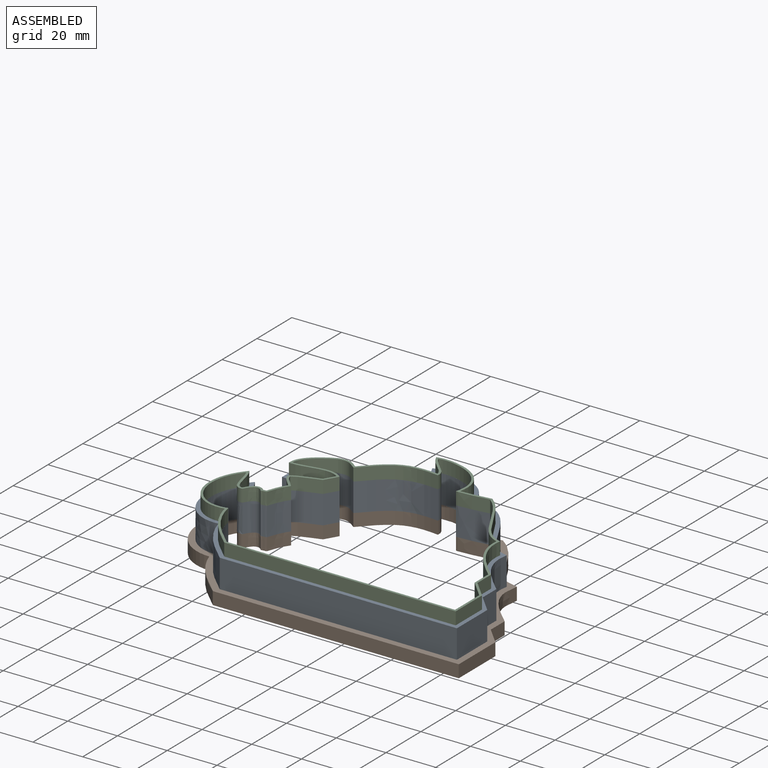
[diagram: assembled view]
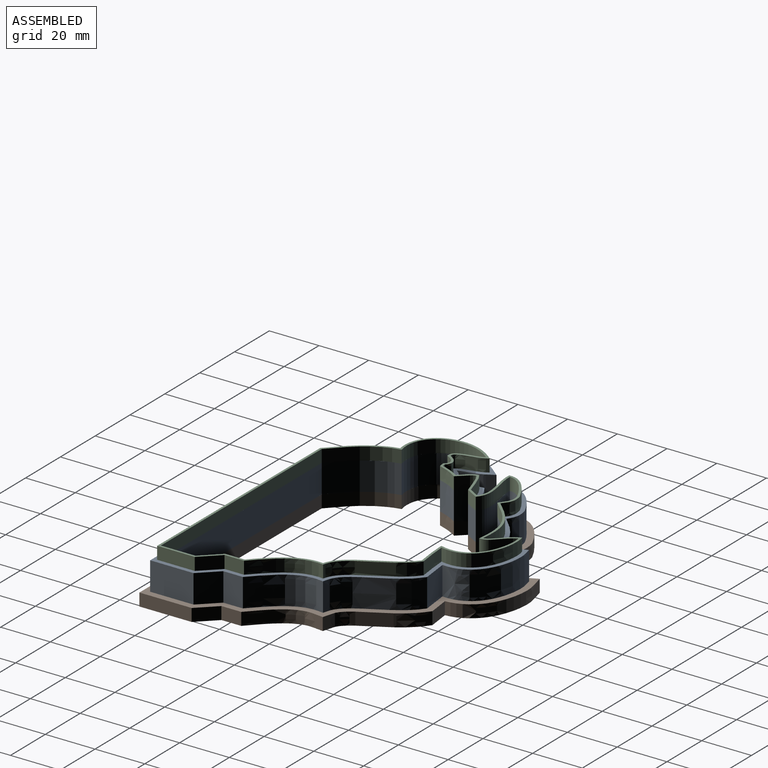
[diagram: assembled view, second angle]
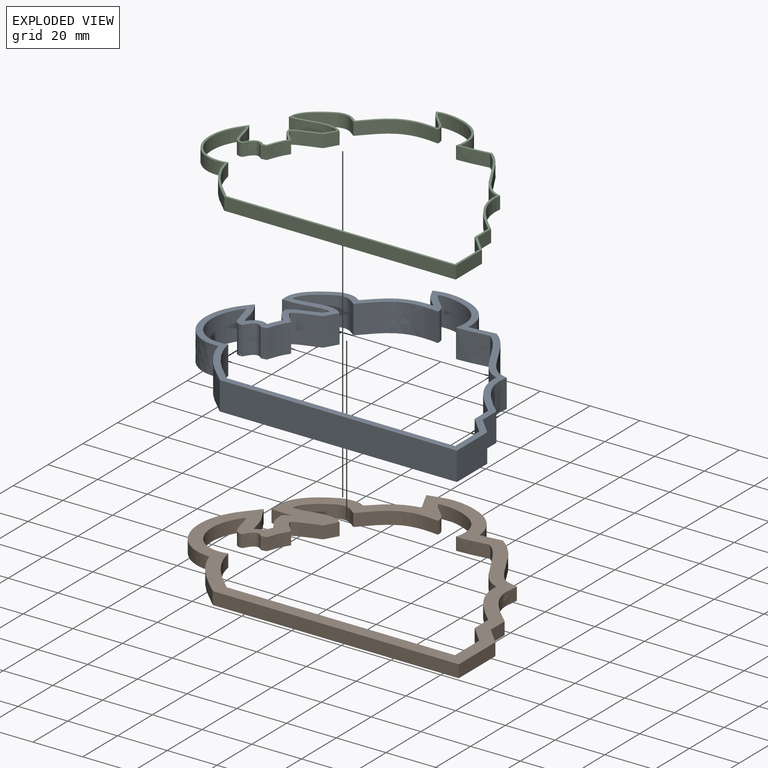
[diagram: exploded view]
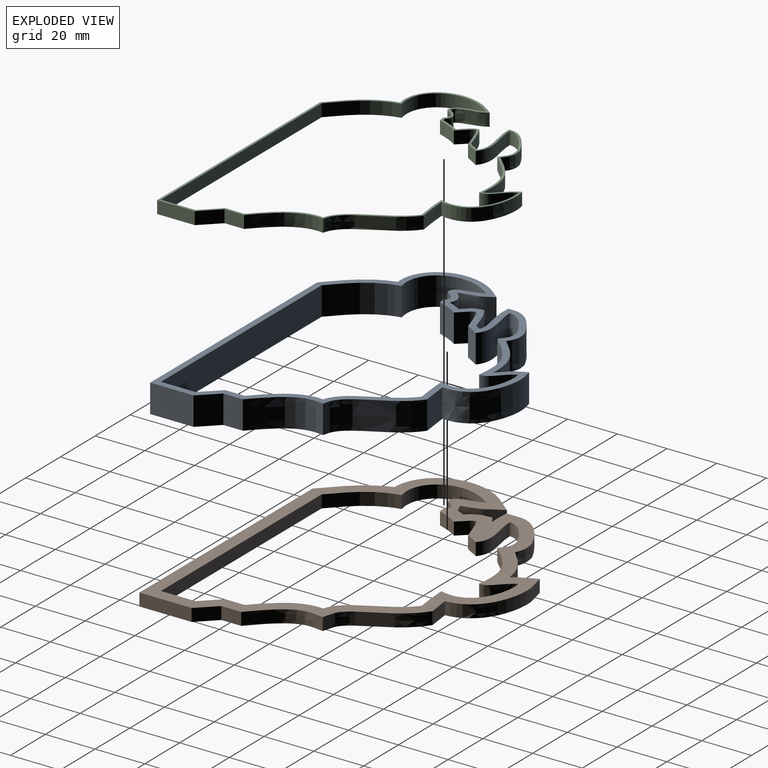
[diagram: exploded view, second angle]
ASSEMBLY  parts=3 mates=2
PART A: 45 faces, bbox 135.7x106.6x19.4 mm
  f0: plane 135.71x106.62mm, normal (0,0,1), area 1136.3mm2, adj f2,f3,f4,f5,f6,f7,f8,f9
  f1: plane 135.71x106.62mm, normal (0,0,-1), area 1136.3mm2, adj f2,f3,f4,f5,f6,f7,f8,f9
  f2: extruded ~33.63x16.59mm, area 523.3mm2, adj f0,f1,f3,f22
  f3: extruded ~21.5x15.59mm, area 308mm2, adj f0,f1,f2,f4
  f4: plane 95.58x11.43mm, normal (0,-1,0), area 1092.5mm2, adj f0,f1,f3,f5
  f5: plane 17.45x11.43mm, normal (1,0,0), area 199.4mm2, adj f0,f1,f4,f6
  f6: plane 11.43x7.17mm, normal (0.72,0.69,0), area 113.5mm2, adj f0,f1,f5,f7
  f7: plane 11.43x7.87mm, normal (1,0,0), area 90mm2, adj f0,f1,f6,f8
  f8: extruded ~23.56x12.69mm, area 320.2mm2, adj f0,f1,f7,f9
  f9: extruded ~26.17x22.44mm, area 405.7mm2, adj f0,f1,f8,f10
  f10: extruded ~11.43x10.6mm, area 121.9mm2, adj f0,f1,f9,f11
  f11: extruded ~26.08x17.7mm, area 414mm2, adj f0,f1,f10,f12
  f12: extruded ~11.43x9.52mm, area 137.7mm2, adj f0,f1,f11,f13
  f13: extruded ~22.65x11.43mm, area 298.4mm2, adj f0,f1,f12,f14
  f14: extruded ~11.43x8.44mm, area 102.6mm2, adj f0,f1,f13,f15
  f15: extruded ~15.45x12.59mm, area 247.9mm2, adj f0,f1,f14,f16
  f16: extruded ~18.25x11.43mm, area 211.2mm2, adj f0,f1,f15,f17
  f17: plane 11.43x2.3mm, normal (-0.86,0.5,0), area 30.5mm2, adj f0,f1,f16,f18
  f18: extruded ~11.45x11.43mm, area 142.3mm2, adj f0,f1,f17,f19
  f19: extruded ~11.43x7.5mm, area 101.4mm2, adj f0,f1,f18,f20
  f20: extruded ~11.43x5.42mm, area 68.4mm2, adj f0,f1,f19,f21
  f21: extruded ~11.43x7.39mm, area 99.5mm2, adj f0,f1,f20,f22
  f22: extruded ~12.59x11.43mm, area 153.4mm2, adj f0,f1,f2,f21
  f23: extruded ~26.63x16mm, area 438.2mm2, adj f0,f1,f24,f44
  f24: extruded ~21.89x14.65mm, area 307.1mm2, adj f0,f1,f23,f25
  f25: plane 92.03x11.43mm, normal (0,1,0), area 1051.9mm2, adj f0,f1,f24,f26
  f26: plane 13.88x11.43mm, normal (-1,0,0), area 158.7mm2, adj f0,f1,f25,f27
  f27: plane 11.43x7.17mm, normal (-0.72,-0.69,0), area 113.5mm2, adj f0,f1,f26,f28
  f28: plane 11.43x7.8mm, normal (-1,0,0), area 89.1mm2, adj f0,f1,f27,f29
  f29: extruded ~22.78x12.69mm, area 309.3mm2, adj f0,f1,f28,f30
  f30: extruded ~25.4x20.39mm, area 380mm2, adj f0,f1,f29,f31
  f31: extruded ~12.94x11.43mm, area 148.8mm2, adj f0,f1,f30,f32
  f32: extruded ~19.9x17.69mm, area 357.3mm2, adj f0,f1,f31,f33
  f33: extruded ~11.43x10.73mm, area 152.8mm2, adj f0,f1,f32,f34
  f34: extruded ~26.19x11.52mm, area 344.9mm2, adj f0,f1,f33,f35
  f35: extruded ~11.43x7.88mm, area 99.8mm2, adj f0,f1,f34,f36
  f36: extruded ~11.43x10.91mm, area 181.6mm2, adj f0,f1,f35,f37
  f37: extruded ~19.15x11.43mm, area 226.6mm2, adj f0,f1,f36,f38
  f38: plane 11.43x5.2mm, normal (0.86,-0.5,0), area 68.8mm2, adj f0,f1,f37,f39
  f39: extruded ~11.43x10.48mm, area 128.1mm2, adj f0,f1,f38,f40
  f40: extruded ~11.43x5.94mm, area 86.5mm2, adj f0,f1,f39,f41
  f41: extruded ~11.43x8.33mm, area 105.6mm2, adj f0,f1,f40,f42
  f42: extruded ~11.43x2.22mm, area 25.9mm2, adj f0,f1,f41,f43
  f43: extruded ~11.43x5.75mm, area 90.4mm2, adj f0,f1,f42,f44
  f44: extruded ~11.43x11.23mm, area 160.5mm2, adj f0,f1,f23,f43
PART B: 44 faces, bbox 136.7x107.6x9 mm
  f0: plane 136.72x107.64mm, normal (0,0,1), area 2277.5mm2, adj f2,f3,f4,f5,f6,f7,f8,f9
  f1: plane 136.72x107.64mm, normal (0,0,-1), area 2277.5mm2, adj f2,f3,f4,f5,f6,f7,f8,f9
  f2: extruded ~40.63x17.28mm, area 272mm2, adj f0,f1,f3,f21
  f3: extruded ~21.41x16.43mm, area 138.7mm2, adj f0,f1,f2,f4
  f4: plane 99.13x5.08mm, normal (0,-1,0), area 503.6mm2, adj f0,f1,f3,f5
  f5: plane 21.01x5.08mm, normal (1,0,0), area 106.7mm2, adj f0,f1,f4,f6
  f6: plane 7.17x6.86mm, normal (0.72,0.69,0), area 50.4mm2, adj f0,f1,f5,f7
  f7: plane 7.95x5.08mm, normal (1,0,0), area 40.4mm2, adj f0,f1,f6,f8
  f8: extruded ~24.34x12.69mm, area 147.1mm2, adj f0,f1,f7,f9
  f9: extruded ~26.95x24.49mm, area 192.9mm2, adj f0,f1,f8,f10
  f10: extruded ~8.71x5.08mm, area 44.6mm2, adj f0,f1,f9,f11
  f11: extruded ~32.22x17.42mm, area 206.5mm2, adj f0,f1,f10,f12
  f12: extruded ~8.86x5.08mm, area 50.2mm2, adj f0,f1,f11,f13
  f13: extruded ~17.08x9.71mm, area 102.1mm2, adj f0,f1,f12,f14
  f14: extruded ~8.92x5.08mm, area 46.4mm2, adj f0,f1,f13,f15
  f15: extruded ~20.3x14.27mm, area 136.9mm2, adj f0,f1,f14,f16
  f16: extruded ~8.4x5.08mm, area 42.4mm2, adj f0,f1,f15,f17
  f17: extruded ~5.08x3.12mm, area 18.5mm2, adj f0,f1,f16,f18
  f18: extruded ~9.24x5.08mm, area 52.3mm2, adj f0,f1,f17,f19
  f19: extruded ~5.08x3.22mm, area 17.9mm2, adj f0,f1,f18,f20
  f20: extruded ~5.08x3.54mm, area 19.8mm2, adj f0,f1,f19,f21
  f21: extruded ~14.51x6.13mm, area 78.8mm2, adj f0,f1,f2,f20
  f22: extruded ~26.63x16mm, area 194.8mm2, adj f0,f1,f23,f43
  f23: extruded ~21.89x14.65mm, area 136.5mm2, adj f0,f1,f22,f24
  f24: plane 92.03x5.08mm, normal (0,1,0), area 467.5mm2, adj f0,f1,f23,f25
  f25: plane 13.88x5.08mm, normal (-1,0,0), area 70.5mm2, adj f0,f1,f24,f26
  f26: plane 7.17x6.86mm, normal (-0.72,-0.69,0), area 50.4mm2, adj f0,f1,f25,f27
  f27: plane 7.8x5.08mm, normal (-1,0,0), area 39.6mm2, adj f0,f1,f26,f28
  f28: extruded ~22.78x12.69mm, area 137.5mm2, adj f0,f1,f27,f29
  f29: extruded ~25.4x20.39mm, area 168.9mm2, adj f0,f1,f28,f30
  f30: extruded ~12.94x5.08mm, area 66.1mm2, adj f0,f1,f29,f31
  f31: extruded ~19.9x17.69mm, area 158.8mm2, adj f0,f1,f30,f32
  f32: extruded ~10.73x7.32mm, area 67.9mm2, adj f0,f1,f31,f33
  f33: extruded ~26.19x11.52mm, area 153.3mm2, adj f0,f1,f32,f34
  f34: extruded ~7.88x5.08mm, area 44.4mm2, adj f0,f1,f33,f35
  f35: extruded ~10.91x10.61mm, area 80.7mm2, adj f0,f1,f34,f36
  f36: extruded ~19.15x5.08mm, area 100.7mm2, adj f0,f1,f35,f37
  f37: plane 5.2x5.08mm, normal (0.86,-0.5,0), area 30.6mm2, adj f0,f1,f36,f38
  f38: extruded ~10.48x5.08mm, area 57mm2, adj f0,f1,f37,f39
  f39: extruded ~5.94x5.08mm, area 38.4mm2, adj f0,f1,f38,f40
  f40: extruded ~8.33x5.08mm, area 46.9mm2, adj f0,f1,f39,f41
  f41: extruded ~5.08x2.22mm, area 11.5mm2, adj f0,f1,f40,f42
  f42: extruded ~5.75x5.08mm, area 40.2mm2, adj f0,f1,f41,f43
  f43: extruded ~11.23x6.31mm, area 71.3mm2, adj f0,f1,f22,f42
PART C: 46 faces, bbox 129.3x99x8.5 mm
  f0: plane 129.29x99.01mm, normal (0,0,1), area 393.6mm2, adj f2,f3,f4,f5,f6,f7,f8,f9
  f1: plane 129.29x99.01mm, normal (0,0,-1), area 393.6mm2, adj f2,f3,f4,f5,f6,f7,f8,f9
  f2: extruded ~29.07x16.19mm, area 207.8mm2, adj f0,f1,f3,f23
  f3: extruded ~21.71x14.99mm, area 136.4mm2, adj f0,f1,f2,f4
  f4: plane 93.27x5.08mm, normal (0,-1,0), area 473.8mm2, adj f0,f1,f3,f5
  f5: plane 15.13x5.08mm, normal (1,0,0), area 76.9mm2, adj f0,f1,f4,f6
  f6: plane 7.17x6.86mm, normal (0.72,0.69,0), area 50.4mm2, adj f0,f1,f5,f7
  f7: plane 7.82x5.08mm, normal (1,0,0), area 39.7mm2, adj f0,f1,f6,f8
  f8: extruded ~23.05x12.69mm, area 139.2mm2, adj f0,f1,f7,f9
  f9: extruded ~25.67x21.11mm, area 173mm2, adj f0,f1,f8,f10
  f10: extruded ~12.08x5.08mm, area 61.7mm2, adj f0,f1,f9,f11
  f11: extruded ~22.05x17.78mm, area 168.2mm2, adj f0,f1,f10,f12
  f12: extruded ~10.34x7.68mm, area 66.4mm2, adj f0,f1,f11,f13
  f13: extruded ~25.48x11.25mm, area 148.8mm2, adj f0,f1,f12,f14
  f14: extruded ~8.05x5.08mm, area 44.7mm2, adj f0,f1,f13,f15
  f15: extruded ~12.3x11.5mm, area 90.4mm2, adj f0,f1,f14,f16
  f16: extruded ~18.88x5.08mm, area 98.3mm2, adj f0,f1,f15,f17
  f17: plane 5.08x4.28mm, normal (-0.86,0.5,0), area 25.1mm2, adj f0,f1,f16,f18
  f18: extruded ~10.82x5.08mm, area 59.1mm2, adj f0,f1,f17,f19
  f19: extruded ~6.44x5.08mm, area 40.7mm2, adj f0,f1,f18,f20
  f20: extruded ~7.55x5.08mm, area 42.4mm2, adj f0,f1,f19,f21
  f21: extruded ~5.08x1.21mm, area 6.2mm2, adj f0,f1,f20,f22
  f22: extruded ~6.65x5.08mm, area 43.9mm2, adj f0,f1,f21,f23
  f23: extruded ~11.9x5.58mm, area 70.3mm2, adj f0,f1,f2,f22
  f24: extruded ~26.63x16mm, area 194.8mm2, adj f0,f1,f25,f45
  f25: extruded ~21.89x14.65mm, area 136.5mm2, adj f0,f1,f24,f26
  f26: plane 92.03x5.08mm, normal (0,1,0), area 467.5mm2, adj f0,f1,f25,f27
  f27: plane 13.88x5.08mm, normal (-1,0,0), area 70.5mm2, adj f0,f1,f26,f28
  f28: plane 7.17x6.86mm, normal (-0.72,-0.69,0), area 50.4mm2, adj f0,f1,f27,f29
  f29: plane 7.8x5.08mm, normal (-1,0,0), area 39.6mm2, adj f0,f1,f28,f30
  f30: extruded ~22.78x12.69mm, area 137.5mm2, adj f0,f1,f29,f31
  f31: extruded ~25.4x20.39mm, area 168.9mm2, adj f0,f1,f30,f32
  f32: extruded ~12.94x5.08mm, area 66.1mm2, adj f0,f1,f31,f33
  f33: extruded ~19.9x17.69mm, area 158.8mm2, adj f0,f1,f32,f34
  f34: extruded ~10.73x7.32mm, area 67.9mm2, adj f0,f1,f33,f35
  f35: extruded ~26.19x11.52mm, area 153.3mm2, adj f0,f1,f34,f36
  f36: extruded ~7.88x5.08mm, area 44.4mm2, adj f0,f1,f35,f37
  f37: extruded ~10.91x10.61mm, area 80.7mm2, adj f0,f1,f36,f38
  f38: extruded ~19.15x5.08mm, area 100.7mm2, adj f0,f1,f37,f39
  f39: plane 5.2x5.08mm, normal (0.86,-0.5,0), area 30.6mm2, adj f0,f1,f38,f40
  f40: extruded ~10.48x5.08mm, area 57mm2, adj f0,f1,f39,f41
  f41: extruded ~5.94x5.08mm, area 38.4mm2, adj f0,f1,f40,f42
  f42: extruded ~8.33x5.08mm, area 46.9mm2, adj f0,f1,f41,f43
  f43: extruded ~5.08x2.22mm, area 11.5mm2, adj f0,f1,f42,f44
  f44: extruded ~5.75x5.08mm, area 40.2mm2, adj f0,f1,f43,f45
  f45: extruded ~11.23x6.31mm, area 71.3mm2, adj f0,f1,f24,f44
PLACE A at identity
PLACE B t=(-234.13,-24.43,-5.08)mm
PLACE C t=(-133.2,4.16,11.43)mm
MATE fastened B.f0 <-> A.f1  axis (0,0,1) through (-164.72,-4.99,0)mm
MATE fastened C.f1 <-> A.f0  axis (0,0,1) through (-164.72,-4.99,11.43)mm
